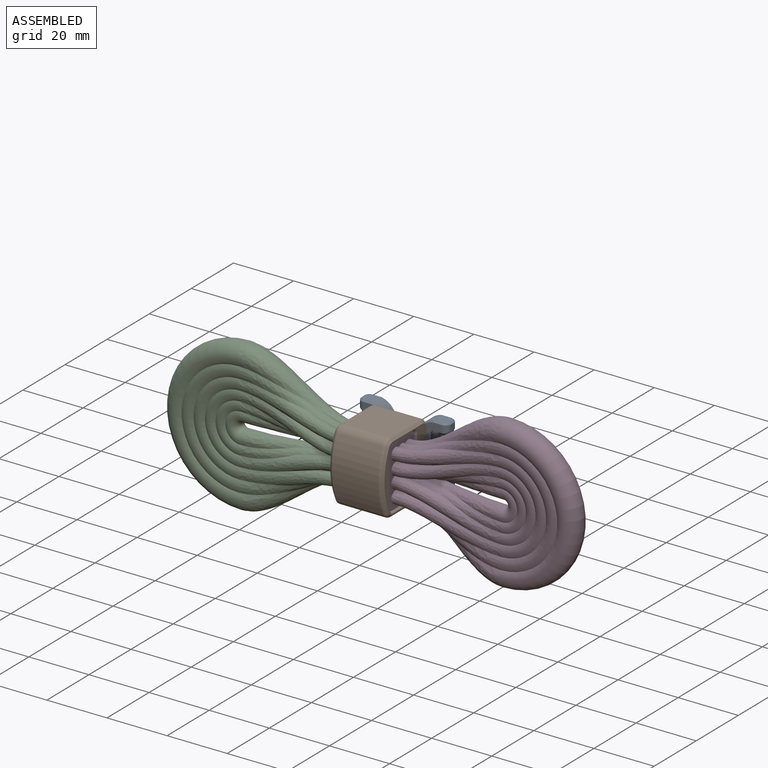
[diagram: assembled view]
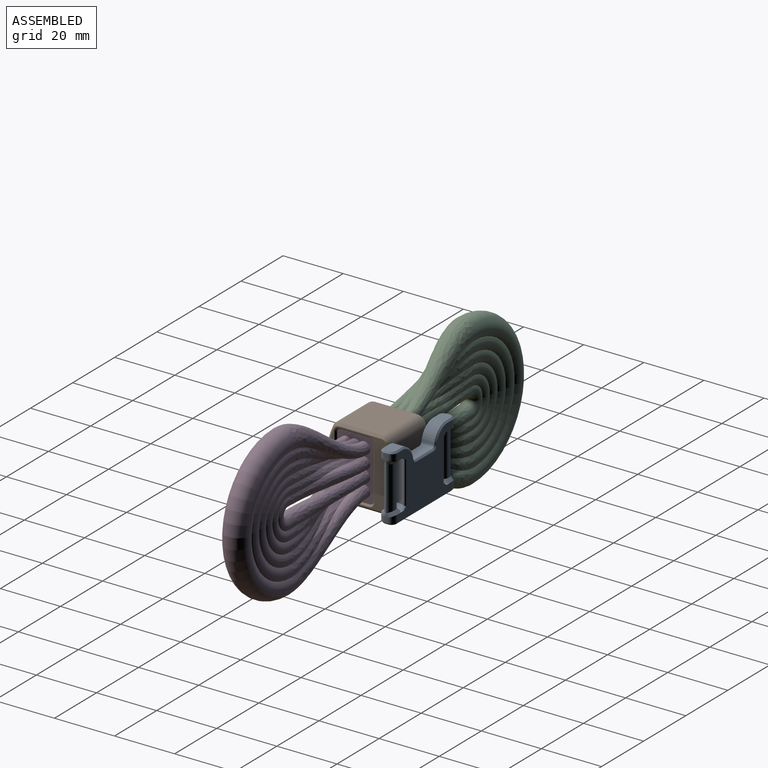
[diagram: assembled view, second angle]
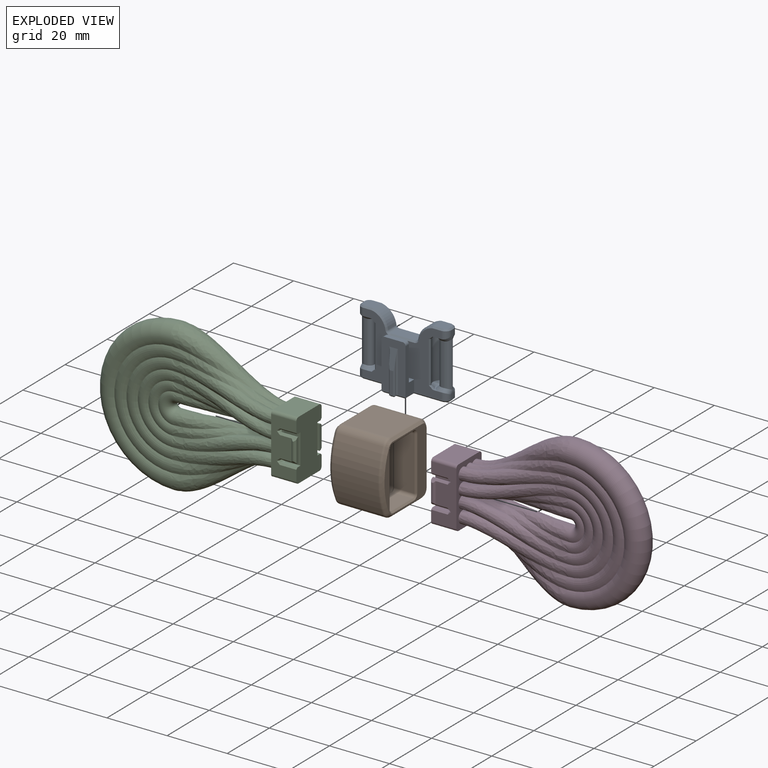
[diagram: exploded view]
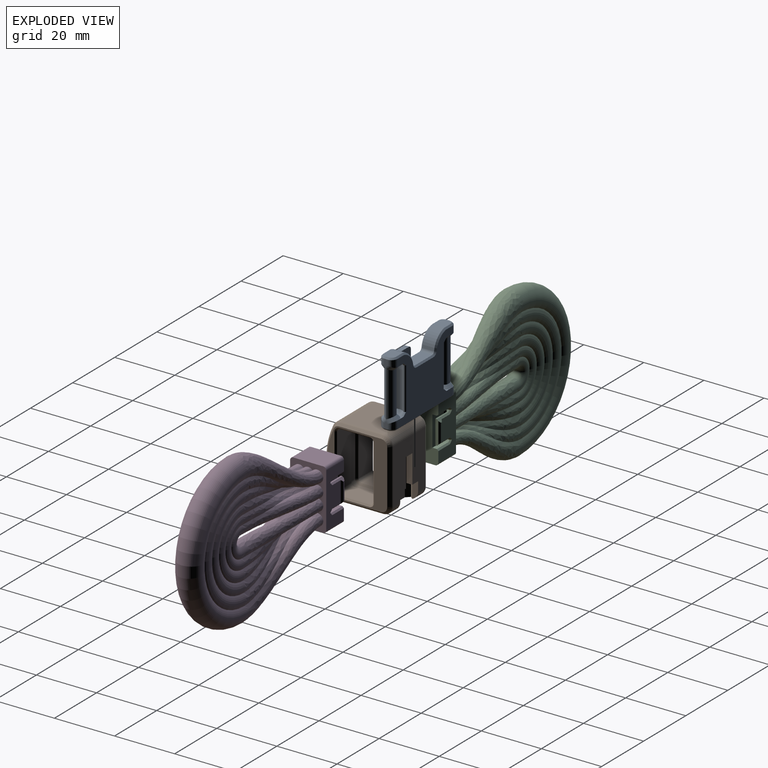
[diagram: exploded view, second angle]
ASSEMBLY  parts=4 mates=3
PART A: 134 faces, bbox 30.1x11.2x22.1 mm
  f0: plane 4.45x4mm, normal (0,0,1), area 16.8mm2, adj f98,f101,f102,f105,f108,f109
  f1: plane 26x21mm, normal (0,-1,0), area 279.1mm2, adj f6,f8,f9,f10,f11,f12,f13,f25
  f2: plane 26x21mm, normal (0,1,0), area 336.1mm2, adj f25,f26,f31,f32,f33,f36,f39,f42
  f3: plane 16.5x8mm, normal (0,-1,0), area 89.6mm2, adj f6,f8,f15,f16,f17,f82,f121,f129
  f4: plane 2.17x1mm, normal (1,0,0), area 1.9mm2, adj f74,f77,f78,f80,f122
  f5: plane 2.17x1mm, normal (-1,0,0), area 1.9mm2, adj f61,f62,f63,f66,f114
  f6: plane 15.5x4.1mm, normal (-1,0,0), area 34.8mm2, adj f1,f3,f13,f14,f17,f119
  f7: plane 29x9.1mm, normal (0,0,-1), area 143.8mm2, adj f114,f115,f116,f117,f118,f119,f120,f121
  f8: plane 15.5x4.1mm, normal (1,0,0), area 34.8mm2, adj f1,f3,f9,f14,f15,f128
  f9: plane 2.75x2.5mm, normal (0,0,1), area 6.9mm2, adj f1,f8,f10,f14
  f10: plane 10x2.5mm, normal (1,0,0), area 25mm2, adj f1,f9,f11,f14
  f11: plane 2.5x2.5mm, normal (0,0,1), area 6.2mm2, adj f1,f10,f12,f14
  f12: plane 10x2.5mm, normal (-1,0,0), area 25mm2, adj f1,f11,f13,f14
  f13: plane 2.75x2.5mm, normal (0,0,1), area 6.9mm2, adj f1,f6,f12,f14
  f14: plane 12.5x8mm, normal (0,1,0), area 74.6mm2, adj f6,f8,f9,f10,f11,f12,f13,f15
  f15: cylinder r=1mm len=1.6mm, axis (0,1,0), area 2.5mm2, adj f3,f8,f14,f16
  f16: plane 6x1.6mm, normal (0,0,1), area 9.6mm2, adj f3,f14,f15,f17
  f17: cylinder r=1mm len=1.6mm, axis (0,1,0), area 2.5mm2, adj f3,f6,f14,f16
  f18: plane 2.17x1mm, normal (1,0,0), area 1.9mm2, adj f71,f72,f73,f76,f101
  f19: plane 4.45x4mm, normal (0,0,1), area 16.8mm2, adj f88,f90,f91,f94,f96,f97
  f20: plane 2.17x1mm, normal (-1,0,0), area 1.9mm2, adj f64,f67,f68,f70,f91
  f21: cylinder r=2.5mm len=14mm, axis (0,0,1), area 51.1mm2, adj f45,f46,f50,f53
  f22: plane 14x0.5mm, normal (0,1,0), area 7mm2, adj f23,f39,f42,f69
  f23: cylinder r=1.5mm len=14mm, axis (0,0,1), area 66mm2, adj f22,f24,f40,f43
  f24: plane 14x0.5mm, normal (0,-1,0), area 7mm2, adj f23,f41,f44,f65
  f25: plane 5x3mm, normal (0,0,1), area 2.9mm2, adj f1,f2,f40,f52,f53,f54
  f26: plane 5x3mm, normal (0,0,-1), area 2.9mm2, adj f1,f2,f43,f49,f50,f51
  f27: plane 14x0.5mm, normal (0,-1,0), area 7mm2, adj f28,f35,f38,f75
  f28: cylinder r=1.5mm len=14mm, axis (0,0,1), area 66mm2, adj f27,f29,f34,f37
  f29: plane 14x0.5mm, normal (0,1,0), area 7mm2, adj f28,f33,f36,f79
  f30: cylinder r=2.5mm len=14mm, axis (0,0,1), area 51.1mm2, adj f47,f48,f56,f59
  f31: plane 5x3mm, normal (0,0,1), area 2.9mm2, adj f1,f2,f37,f55,f56,f57
  f32: plane 5x3mm, normal (0,0,-1), area 2.9mm2, adj f1,f2,f34,f58,f59,f60
  f33: plane 1x1mm, normal (0,0.71,-0.71), area 0.7mm2, adj f2,f29,f34,f76
  f34: cone r=2.5mm half-angle=45deg, axis (0,0,1), area 8.9mm2, adj f28,f32,f33,f35
  f35: plane 1x1mm, normal (0,-0.71,-0.71), area 0.7mm2, adj f1,f27,f34,f72
  f36: plane 1x1mm, normal (0,0.71,0.71), area 0.7mm2, adj f2,f29,f37,f80
  f37: cone r=1.5mm half-angle=45deg, axis (0,0,-1), area 8.9mm2, adj f28,f31,f36,f38
  f38: plane 1x1mm, normal (0,-0.71,0.71), area 0.7mm2, adj f1,f27,f37,f78
  f39: plane 1x1mm, normal (0,0.71,0.71), area 0.7mm2, adj f2,f22,f40,f66
  f40: cone r=2.5mm half-angle=45deg, axis (0,0,-1), area 8.9mm2, adj f23,f25,f39,f41
  f41: plane 1x1mm, normal (0,-0.71,0.71), area 0.7mm2, adj f1,f24,f40,f62
  f42: plane 1x1mm, normal (0,0.71,-0.71), area 0.7mm2, adj f2,f22,f43,f70
  f43: cone r=1.5mm half-angle=45deg, axis (0,0,1), area 8.9mm2, adj f23,f26,f42,f44
  f44: plane 1x1mm, normal (0,-0.71,-0.71), area 0.7mm2, adj f1,f24,f43,f68
  f45: cylinder r=0.5mm len=14mm, axis (0,0,1), area 16.1mm2, adj f1,f21,f49,f52
  f46: cylinder r=0.5mm len=14mm, axis (0,0,1), area 16.1mm2, adj f2,f21,f51,f54
  f47: cylinder r=0.5mm len=14mm, axis (0,0,1), area 16.1mm2, adj f2,f30,f57,f60
  f48: cylinder r=0.5mm len=14mm, axis (0,0,1), area 16.1mm2, adj f1,f30,f55,f58
  f49: cone r=1.5mm half-angle=45deg, axis (0,0,1), area 1.8mm2, adj f1,f26,f45,f50
  f50: cone r=1.5mm half-angle=45deg, axis (0,0,-1), area 4.1mm2, adj f21,f26,f49,f51
  f51: cone r=1.5mm half-angle=45deg, axis (0,0,1), area 1.8mm2, adj f2,f26,f46,f50
  f52: cone r=1.5mm half-angle=45deg, axis (0,0,-1), area 1.8mm2, adj f1,f25,f45,f53
  f53: cone r=2.5mm half-angle=45deg, axis (0,0,1), area 4.1mm2, adj f21,f25,f52,f54
  f54: cone r=1.5mm half-angle=45deg, axis (0,0,-1), area 1.8mm2, adj f2,f25,f46,f53
  f55: cone r=1.5mm half-angle=45deg, axis (0,0,-1), area 1.8mm2, adj f1,f31,f48,f56
  f56: cone r=1.5mm half-angle=45deg, axis (0,0,1), area 4.1mm2, adj f30,f31,f55,f57
  f57: cone r=1.5mm half-angle=45deg, axis (0,0,-1), area 1.8mm2, adj f2,f31,f47,f56
  f58: cone r=1.5mm half-angle=45deg, axis (0,0,1), area 1.8mm2, adj f1,f32,f48,f59
  f59: cone r=2.5mm half-angle=45deg, axis (0,0,-1), area 4.1mm2, adj f30,f32,f58,f60
  f60: cone r=1.5mm half-angle=45deg, axis (0,0,1), area 1.8mm2, adj f2,f32,f47,f59
  f61: cylinder r=2mm len=2.5mm, axis (0,0,-1), area 6.9mm2, adj f1,f5,f62,f115
  f62: cylinder r=2mm len=2.85mm, axis (0,0.71,0.71), area 4.5mm2, adj f5,f41,f61,f65,f66
  f63: cylinder r=2mm len=2.5mm, axis (0,0,1), area 6.9mm2, adj f2,f5,f66,f116
  f64: cylinder r=2mm len=2.5mm, axis (0,0,-1), area 6.9mm2, adj f1,f20,f68,f88
  f65: cylinder r=2mm len=15.24mm, axis (0,0,1), area 38.5mm2, adj f24,f62,f68,f69
  f66: cylinder r=2mm len=2.85mm, axis (0,0.71,-0.71), area 4.5mm2, adj f5,f39,f62,f63,f69
  f67: cylinder r=2mm len=2.5mm, axis (0,0,1), area 6.9mm2, adj f2,f20,f70,f94
  f68: cylinder r=2mm len=2.85mm, axis (0,0.71,-0.71), area 4.5mm2, adj f20,f44,f64,f65,f70
  f69: cylinder r=2mm len=15.24mm, axis (0,0,1), area 38.5mm2, adj f22,f65,f66,f70
  f70: cylinder r=2mm len=2.85mm, axis (0,0.71,0.71), area 4.5mm2, adj f20,f42,f67,f68,f69
  f71: cylinder r=2mm len=2.5mm, axis (0,0,1), area 6.9mm2, adj f1,f18,f72,f98
  f72: cylinder r=2mm len=2.85mm, axis (0,-0.71,0.71), area 4.5mm2, adj f18,f35,f71,f75,f76
  f73: cylinder r=2mm len=2.5mm, axis (0,0,-1), area 6.9mm2, adj f2,f18,f76,f105
  f74: cylinder r=2mm len=2.5mm, axis (0,0,1), area 6.9mm2, adj f1,f4,f78,f124
  f75: cylinder r=2mm len=15.24mm, axis (0,0,1), area 38.5mm2, adj f27,f72,f78,f79
  f76: cylinder r=2mm len=2.85mm, axis (0,-0.71,-0.71), area 4.5mm2, adj f18,f33,f72,f73,f79
  f77: cylinder r=2mm len=2.5mm, axis (0,0,-1), area 6.9mm2, adj f2,f4,f80,f120
  f78: cylinder r=2mm len=2.85mm, axis (0,-0.71,-0.71), area 4.5mm2, adj f4,f38,f74,f75,f80
  f79: cylinder r=2mm len=15.24mm, axis (0,0,1), area 38.5mm2, adj f29,f75,f76,f80
  f80: cylinder r=2mm len=2.85mm, axis (0,-0.71,0.71), area 4.5mm2, adj f4,f36,f77,f78,f79
  f81: plane 7.5x1mm, normal (0,-1,0), area 7.5mm2, adj f82,f125,f131,f133
  f82: plane 6.5x3mm, normal (0,-0.99,0.15), area 13.2mm2, adj f3,f81,f130,f131,f132,f133
  f83: cylinder r=6.1mm len=5.13mm, axis (0,-1,0), area 30.3mm2, adj f86,f89,f96,f104
  f84: plane 8.14x4mm, normal (0,0,1), area 32.6mm2, adj f86,f87,f95,f110
  f85: cylinder r=6.1mm len=5.13mm, axis (0,-1,0), area 30.3mm2, adj f87,f103,f109,f113
  f86: cylinder r=1mm len=4mm, axis (0,-1,0), area 5.7mm2, adj f83,f84,f92,f107
  f87: cylinder r=1mm len=4mm, axis (0,-1,0), area 5.7mm2, adj f84,f85,f99,f112
  f88: cone r=1.5mm half-angle=45deg, axis (0,0,-1), area 1.9mm2, adj f19,f64,f90,f91
  f89: cone r=5.6mm half-angle=45deg, axis (0,1,0), area 5.1mm2, adj f1,f83,f92,f93
  f90: plane 2.95x0.5mm, normal (0,-0.71,0.71), area 2.1mm2, adj f1,f19,f88,f93
  f91: plane 1x0.5mm, normal (-0.71,0,0.71), area 0.7mm2, adj f19,f20,f88,f94
  f92: cone r=1.5mm half-angle=45deg, axis (0,-1,0), area 1.3mm2, adj f1,f86,f89,f95
  f93: plane 0.5x0.5mm, normal (0.07,-0.71,0.71), area 0mm2, adj f89,f90,f96
  f94: cone r=1.5mm half-angle=45deg, axis (0,0,-1), area 1.9mm2, adj f19,f67,f91,f97
  f95: plane 8.14x0.5mm, normal (0,-0.71,0.71), area 5.8mm2, adj f1,f84,f92,f99
  f96: plane 4x0.09mm, normal (0.09,0,1), area 0.4mm2, adj f19,f83,f93,f100
  f97: plane 2.95x0.5mm, normal (0,0.71,0.71), area 2.1mm2, adj f2,f19,f94,f100
  f98: cone r=1.5mm half-angle=45deg, axis (0,0,-1), area 1.9mm2, adj f0,f71,f101,f102
  f99: cone r=1.5mm half-angle=45deg, axis (0,-1,0), area 1.3mm2, adj f1,f87,f95,f103
  f100: plane 0.5x0.5mm, normal (0.07,0.71,0.71), area 0mm2, adj f96,f97,f104
  f101: plane 1x0.5mm, normal (0.71,0,0.71), area 0.7mm2, adj f0,f18,f98,f105
  f102: plane 2.95x0.5mm, normal (0,-0.71,0.71), area 2.1mm2, adj f0,f1,f98,f106
  f103: cone r=5.6mm half-angle=45deg, axis (0,1,0), area 5.1mm2, adj f1,f85,f99,f106
  f104: cone r=6.1mm half-angle=45deg, axis (0,-1,0), area 5.1mm2, adj f2,f83,f100,f107
  f105: cone r=1.5mm half-angle=45deg, axis (0,0,-1), area 1.9mm2, adj f0,f73,f101,f108
  f106: plane 0.5x0.5mm, normal (-0.07,-0.71,0.71), area 0mm2, adj f102,f103,f109
  f107: cone r=1.5mm half-angle=45deg, axis (0,1,0), area 1.3mm2, adj f2,f86,f104,f110
  f108: plane 2.95x0.5mm, normal (0,0.71,0.71), area 2.1mm2, adj f0,f2,f105,f111
  f109: plane 4x0.09mm, normal (-0.09,0,1), area 0.4mm2, adj f0,f85,f106,f111
  f110: plane 8.14x0.5mm, normal (0,0.71,0.71), area 5.8mm2, adj f2,f84,f107,f112
  f111: plane 0.5x0.5mm, normal (-0.07,0.71,0.71), area 0mm2, adj f108,f109,f113
  f112: cone r=1.5mm half-angle=45deg, axis (0,1,0), area 1.3mm2, adj f2,f87,f110,f113
  f113: cone r=6.1mm half-angle=45deg, axis (0,-1,0), area 5.1mm2, adj f2,f85,f111,f112
  f114: plane 1x0.5mm, normal (-0.71,0,-0.71), area 0.7mm2, adj f5,f7,f115,f116
  f115: cone r=1.5mm half-angle=45deg, axis (0,0,1), area 1.9mm2, adj f7,f61,f114,f117
  f116: cone r=1.5mm half-angle=45deg, axis (0,0,1), area 1.9mm2, adj f7,f63,f114,f118
  f117: plane 9.5x0.5mm, normal (0,-0.71,-0.71), area 6.5mm2, adj f1,f7,f115,f119
  f118: plane 26x0.5mm, normal (0,0.71,-0.71), area 18.4mm2, adj f2,f7,f116,f120
  f119: plane 4.6x0.5mm, normal (-0.71,0,-0.71), area 2.9mm2, adj f6,f7,f117,f121
  f120: cone r=1.5mm half-angle=45deg, axis (0,0,1), area 1.9mm2, adj f7,f77,f118,f122
  f121: plane 3.57x0.72mm, normal (0,-0.71,-0.71), area 2.2mm2, adj f3,f7,f119,f123,f130
  f122: plane 1x0.5mm, normal (0.71,0,-0.71), area 0.7mm2, adj f4,f7,f120,f124
  f123: plane 1.42x0.72mm, normal (-0.71,0,-0.71), area 0.7mm2, adj f7,f121,f125,f130,f131
  f124: cone r=1.5mm half-angle=45deg, axis (0,0,1), area 1.9mm2, adj f7,f74,f122,f126
  f125: plane 1.78x0.57mm, normal (0,-0.71,-0.71), area 1mm2, adj f7,f81,f123,f127,f131,f133
  f126: plane 9.5x0.5mm, normal (0,-0.71,-0.71), area 6.5mm2, adj f1,f7,f124,f128
  f127: plane 1.42x0.72mm, normal (0.71,0,-0.71), area 0.7mm2, adj f7,f125,f129,f132,f133
  f128: plane 4.6x0.5mm, normal (0.71,0,-0.71), area 2.9mm2, adj f7,f8,f126,f129
  f129: plane 3.57x0.72mm, normal (0,-0.71,-0.71), area 2.2mm2, adj f3,f7,f127,f128,f132
  f130: cylinder r=0.5mm len=14mm, axis (0,0,1), area 10mm2, adj f3,f82,f121,f123,f131
  f131: cylinder r=0.5mm len=10.9mm, axis (0,0,-1), area 6.9mm2, adj f81,f82,f123,f125,f130
  f132: cylinder r=0.5mm len=14mm, axis (0,0,-1), area 10mm2, adj f3,f82,f127,f129,f133
  f133: cylinder r=0.5mm len=10.9mm, axis (0,0,1), area 6.9mm2, adj f81,f82,f125,f127,f132
PART B: 113 faces, bbox 18x24.3x24.5 mm
  f0: plane 10x6.9mm, normal (0,0,-1), area 69mm2, adj f1,f7,f85,f108
  f1: cylinder r=1.05mm len=6.9mm, axis (-1,0,0), area 11.4mm2, adj f0,f2,f83,f106
  f2: plane 18x6.9mm, normal (0,-1,0), area 124.2mm2, adj f1,f3,f81,f105
  f3: cylinder r=1.05mm len=6.9mm, axis (-1,0,0), area 11.4mm2, adj f2,f4,f82,f107
  f4: plane 10x6.9mm, normal (0,0,1), area 69mm2, adj f3,f5,f84,f109
  f5: cylinder r=1.05mm len=6.9mm, axis (-1,0,0), area 11.4mm2, adj f4,f6,f86,f111
  f6: plane 18x6.9mm, normal (0,1,0), area 124.2mm2, adj f5,f7,f88,f112
  f7: cylinder r=1.05mm len=6.9mm, axis (-1,0,0), area 11.4mm2, adj f0,f6,f87,f110
  f8: cylinder r=3mm len=15.17mm, axis (-1,0,0), area 51.6mm2, adj f20,f38,f63,f70
  f9: plane 15.17x14mm, normal (0,0,-1), area 198.6mm2, adj f17,f28,f29,f30,f31,f32,f39,f40
  f10: plane 10x6.9mm, normal (0,0,-1), area 69mm2, adj f11,f21,f77,f100
  f11: cylinder r=1.05mm len=6.9mm, axis (-1,0,0), area 11.4mm2, adj f10,f12,f75,f98
  f12: plane 18x6.9mm, normal (0,-1,0), area 124.2mm2, adj f11,f13,f73,f97
  f13: cylinder r=1.05mm len=6.9mm, axis (-1,0,0), area 11.4mm2, adj f12,f14,f74,f99
  f14: plane 10x6.9mm, normal (0,0,1), area 69mm2, adj f13,f15,f76,f101
  f15: cylinder r=1.05mm len=6.9mm, axis (-1,0,0), area 11.4mm2, adj f14,f16,f78,f103
  f16: plane 18x6.9mm, normal (0,1,0), area 124.2mm2, adj f15,f21,f80,f104
  f17: cylinder r=3mm len=15.17mm, axis (-1,0,0), area 51.6mm2, adj f9,f38,f59,f66
  f18: plane 18x15.17mm, normal (0,1,0), area 219.1mm2, adj f19,f24,f25,f26,f34,f35,f36,f37
  f19: cylinder r=3mm len=15.17mm, axis (-1,0,0), area 71.5mm2, adj f18,f20,f62,f71
  f20: plane 15.17x14mm, normal (0,0,1), area 212.4mm2, adj f8,f19,f64,f72
  f21: cylinder r=1.05mm len=6.9mm, axis (-1,0,0), area 11.4mm2, adj f10,f16,f79,f102
  f22: plane 22x20mm, normal (1,0,0), area 143.6mm2, adj f49,f50,f51,f52,f53,f54,f55,f56
  f23: plane 22x20mm, normal (-1,0,0), area 143.6mm2, adj f41,f42,f43,f44,f45,f46,f47,f48
  f24: plane 9.5x2mm, normal (1,0,0), area 19mm2, adj f18,f26,f27,f35
  f25: plane 9.5x2mm, normal (-1,0,0), area 19mm2, adj f18,f26,f27,f37
  f26: plane 3x2mm, normal (0,0,-1), area 6mm2, adj f18,f24,f25,f27
  f27: plane 13.5x8.5mm, normal (0,-1,0), area 86.2mm2, adj f24,f25,f26,f28,f32,f33,f35,f37
  f28: plane 19.51x1.21mm, normal (0.71,-0.71,0), area 33mm2, adj f9,f27,f29,f33,f34,f39
  f29: plane 19.5x1.2mm, normal (0.71,0.71,0), area 33.1mm2, adj f9,f28,f30,f33
  f30: plane 19.5x8.5mm, normal (0,1,0), area 165.8mm2, adj f9,f29,f31,f33
  f31: plane 19.5x1.2mm, normal (-0.71,0.71,0), area 33.1mm2, adj f9,f30,f32,f33
  f32: plane 19.51x1.21mm, normal (-0.71,-0.71,0), area 33mm2, adj f9,f27,f31,f33,f36,f40
  f33: plane 10.9x2.4mm, normal (0,0,-1), area 23.3mm2, adj f27,f28,f29,f30,f31,f32
  f34: plane 5.83x2mm, normal (1,0,0), area 10.1mm2, adj f18,f28,f35,f39
  f35: plane 2.75x2mm, normal (0,0,-1), area 5.5mm2, adj f18,f24,f27,f34
  f36: plane 5.83x2mm, normal (-1,0,0), area 10.1mm2, adj f18,f32,f37,f40
  f37: plane 2.75x2mm, normal (0,0,-1), area 5.5mm2, adj f18,f25,f27,f36
  f38: cylinder r=24.25mm len=20.54mm, axis (-1,0,0), area 321.8mm2, adj f8,f17,f61,f68
  f39: cylinder r=3mm len=3.34mm, axis (1,0,0), area 15.2mm2, adj f9,f18,f28,f34,f58
  f40: cylinder r=3mm len=3.34mm, axis (1,0,0), area 15.2mm2, adj f9,f18,f32,f36,f67
  f41: plane 14x0.71mm, normal (-0.71,0,-0.71), area 14mm2, adj f23,f42,f43,f57
  f42: cone r=2mm half-angle=45deg, axis (1,0,0), area 3.7mm2, adj f23,f41,f44,f58
  f43: cone r=3mm half-angle=45deg, axis (1,0,0), area 2.7mm2, adj f23,f41,f45,f59
  f44: plane 18x0.71mm, normal (-0.71,0.71,0), area 18mm2, adj f23,f42,f46,f60
  f45: cone r=24.25mm half-angle=45deg, axis (1,0,0), area 20.6mm2, adj f23,f43,f47,f61
  f46: cone r=3mm half-angle=45deg, axis (1,0,0), area 3.7mm2, adj f23,f44,f48,f62
  f47: cone r=3mm half-angle=45deg, axis (1,0,0), area 2.7mm2, adj f23,f45,f48,f63
  f48: plane 14x0.71mm, normal (-0.71,0,0.71), area 14mm2, adj f23,f46,f47,f64
  f49: plane 14x0.71mm, normal (0.71,0,-0.71), area 14mm2, adj f22,f50,f51,f65
  f50: cone r=2mm half-angle=45deg, axis (-1,0,0), area 3.7mm2, adj f22,f49,f52,f67
  f51: cone r=2mm half-angle=45deg, axis (-1,0,0), area 2.7mm2, adj f22,f49,f53,f66
  f52: plane 18x0.71mm, normal (0.71,0.71,0), area 18mm2, adj f22,f50,f54,f69
  f53: cone r=23.25mm half-angle=45deg, axis (-1,0,0), area 20.6mm2, adj f22,f51,f55,f68
  f54: cone r=2mm half-angle=45deg, axis (-1,0,0), area 3.7mm2, adj f22,f52,f56,f71
  f55: cone r=2mm half-angle=45deg, axis (-1,0,0), area 2.7mm2, adj f22,f53,f56,f70
  f56: plane 14x0.71mm, normal (0.71,0,0.71), area 14mm2, adj f22,f54,f55,f72
  f57: cylinder r=1mm len=14mm, axis (0,1,0), area 11mm2, adj f9,f41,f58,f59
  f58: torus R=2mm, axis (-1,0,0), area 3.6mm2, adj f39,f42,f57,f60
  f59: torus R=2mm, axis (-1,0,0), area 2.6mm2, adj f17,f43,f57,f61
  f60: cylinder r=1mm len=18mm, axis (0,0,1), area 14.1mm2, adj f18,f44,f58,f62
  f61: torus R=23.25mm, axis (-1,0,0), area 16.6mm2, adj f38,f45,f59,f63
  f62: torus R=2mm, axis (-1,0,0), area 3.6mm2, adj f19,f46,f60,f64
  f63: torus R=2mm, axis (-1,0,0), area 2.6mm2, adj f8,f47,f61,f64
  f64: cylinder r=1mm len=14mm, axis (0,-1,0), area 11mm2, adj f20,f48,f62,f63
  f65: cylinder r=1mm len=14mm, axis (0,1,0), area 11mm2, adj f9,f49,f66,f67
  f66: torus R=2mm, axis (1,0,0), area 2.6mm2, adj f17,f51,f65,f68
  f67: torus R=2mm, axis (1,0,0), area 3.6mm2, adj f40,f50,f65,f69
  f68: torus R=23.25mm, axis (1,0,0), area 16.6mm2, adj f38,f53,f66,f70
  f69: cylinder r=1mm len=18mm, axis (0,0,1), area 14.1mm2, adj f18,f52,f67,f71
  f70: torus R=2mm, axis (1,0,0), area 2.6mm2, adj f8,f55,f68,f72
  f71: torus R=2mm, axis (1,0,0), area 3.6mm2, adj f19,f54,f69,f72
  f72: cylinder r=1mm len=14mm, axis (0,-1,0), area 11mm2, adj f20,f56,f70,f71
  f73: plane 18x0.5mm, normal (0.71,-0.71,0), area 12.7mm2, adj f12,f22,f74,f75
  f74: cone r=1.05mm half-angle=45deg, axis (1,0,0), area 1.4mm2, adj f13,f22,f73,f76
  f75: cone r=1.05mm half-angle=45deg, axis (1,0,0), area 1.4mm2, adj f11,f22,f73,f77
  f76: plane 10x0.5mm, normal (0.71,0,0.71), area 7.1mm2, adj f14,f22,f74,f78
  f77: plane 10x0.5mm, normal (0.71,0,-0.71), area 7.1mm2, adj f10,f22,f75,f79
  f78: cone r=1.05mm half-angle=45deg, axis (1,0,0), area 1.4mm2, adj f15,f22,f76,f80
  f79: cone r=1.05mm half-angle=45deg, axis (1,0,0), area 1.4mm2, adj f21,f22,f77,f80
  f80: plane 18x0.5mm, normal (0.71,0.71,0), area 12.7mm2, adj f16,f22,f78,f79
  f81: plane 18x0.5mm, normal (-0.71,-0.71,0), area 12.7mm2, adj f2,f23,f82,f83
  f82: cone r=1.55mm half-angle=45deg, axis (-1,0,0), area 1.4mm2, adj f3,f23,f81,f84
  f83: cone r=1.55mm half-angle=45deg, axis (-1,0,0), area 1.4mm2, adj f1,f23,f81,f85
  f84: plane 10x0.5mm, normal (-0.71,0,0.71), area 7.1mm2, adj f4,f23,f82,f86
  f85: plane 10x0.5mm, normal (-0.71,0,-0.71), area 7.1mm2, adj f0,f23,f83,f87
  f86: cone r=1.55mm half-angle=45deg, axis (-1,0,0), area 1.4mm2, adj f5,f23,f84,f88
  f87: cone r=1.55mm half-angle=45deg, axis (-1,0,0), area 1.4mm2, adj f7,f23,f85,f88
  f88: plane 18x0.5mm, normal (-0.71,0.71,0), area 12.7mm2, adj f6,f23,f86,f87
  f89: cylinder r=1.65mm len=2mm, axis (-1,0,0), area 5.2mm2, adj f90,f96,f102,f110
  f90: plane 18x2mm, normal (0,1,0), area 36mm2, adj f89,f91,f104,f112
  f91: cylinder r=1.65mm len=2mm, axis (-1,0,0), area 5.2mm2, adj f90,f92,f103,f111
  f92: plane 10x2mm, normal (0,0,1), area 20mm2, adj f91,f93,f101,f109
  f93: cylinder r=1.65mm len=2mm, axis (-1,0,0), area 5.2mm2, adj f92,f94,f99,f107
  f94: plane 18x2mm, normal (0,-1,0), area 36mm2, adj f93,f95,f97,f105
  f95: cylinder r=1.65mm len=2mm, axis (-1,0,0), area 5.2mm2, adj f94,f96,f98,f106
  f96: plane 10x2mm, normal (0,0,-1), area 20mm2, adj f89,f95,f100,f108
  f97: plane 18x0.6mm, normal (-0.71,-0.71,0), area 15.3mm2, adj f12,f94,f98,f99
  f98: cone r=1.65mm half-angle=45deg, axis (-1,0,0), area 1.8mm2, adj f11,f95,f97,f100
  f99: cone r=1.65mm half-angle=45deg, axis (-1,0,0), area 1.8mm2, adj f13,f93,f97,f101
  f100: plane 10x0.6mm, normal (-0.71,0,-0.71), area 8.5mm2, adj f10,f96,f98,f102
  f101: plane 10x0.6mm, normal (-0.71,0,0.71), area 8.5mm2, adj f14,f92,f99,f103
  f102: cone r=1.65mm half-angle=45deg, axis (-1,0,0), area 1.8mm2, adj f21,f89,f100,f104
  f103: cone r=1.65mm half-angle=45deg, axis (-1,0,0), area 1.8mm2, adj f15,f91,f101,f104
  f104: plane 18x0.6mm, normal (-0.71,0.71,0), area 15.3mm2, adj f16,f90,f102,f103
  f105: plane 18x0.6mm, normal (0.71,-0.71,0), area 15.3mm2, adj f2,f94,f106,f107
  f106: cone r=1.05mm half-angle=45deg, axis (1,0,0), area 1.8mm2, adj f1,f95,f105,f108
  f107: cone r=1.05mm half-angle=45deg, axis (1,0,0), area 1.8mm2, adj f3,f93,f105,f109
  f108: plane 10x0.6mm, normal (0.71,0,-0.71), area 8.5mm2, adj f0,f96,f106,f110
  f109: plane 10x0.6mm, normal (0.71,0,0.71), area 8.5mm2, adj f4,f92,f107,f111
  f110: cone r=1.05mm half-angle=45deg, axis (1,0,0), area 1.8mm2, adj f7,f89,f108,f112
  f111: cone r=1.05mm half-angle=45deg, axis (1,0,0), area 1.8mm2, adj f5,f91,f109,f112
  f112: plane 18x0.6mm, normal (0.71,0.71,0), area 15.3mm2, adj f6,f90,f110,f111
PART C: 86 faces, bbox 54.7x13x70.7 mm
  f0: plane 18x8.4mm, normal (0,-1,0), area 116.7mm2, adj f3,f7,f14,f33,f66,f67,f68,f70
  f1: plane 18x8.4mm, normal (0,1,0), area 116.7mm2, adj f3,f7,f12,f31,f52,f53,f54,f56
  f2: plane 8x1mm, normal (0,0,-1), area 7.8mm2, adj f46,f47,f48,f66,f71,f85
  f3: plane 20x12mm, normal (0,0,-1), area 198.6mm2, adj f0,f1,f12,f13,f14,f31,f32,f33
  f4: torus R=6.75mm, axis (0,1,0), area 67.8mm2, adj f17,f22,f27,f35
  f5: torus R=13.5mm, axis (0,1,0), area 159.5mm2, adj f6,f19,f27,f37
  f6: torus R=17.25mm, axis (0,1,0), area 218.5mm2, adj f5,f20,f24,f38
  f7: plane 20x12mm, normal (0,0,1), area 100.4mm2, adj f0,f1,f8,f12,f13,f14,f16,f17
  f8: bspline ~35x16.1mm, area 112.1mm2, adj f7,f19,f21,f25
  f9: plane 3x1.36mm, normal (0,0,1), area 1.2mm2, adj f10,f18,f30,f36
  f10: bspline ~35x8.13mm, area 102.7mm2, adj f9,f11,f16,f18,f23
  f11: plane 3x1.36mm, normal (0,0,1), area 1.2mm2, adj f10,f16,f30,f34
  f12: cylinder r=1mm len=8.4mm, axis (0,0,1), area 13.2mm2, adj f1,f3,f7,f13
  f13: plane 10x8.4mm, normal (-1,0,0), area 84mm2, adj f3,f7,f12,f14
  f14: cylinder r=1mm len=8.4mm, axis (0,0,1), area 13.2mm2, adj f0,f3,f7,f13
  f15: plane 8x1mm, normal (0,0,-1), area 7.7mm2, adj f40,f44,f45,f54,f65,f80
  f16: bspline ~35x7.74mm, area 334.8mm2, adj f7,f10,f11,f17,f22
  f17: bspline ~35x9.35mm, area 100.1mm2, adj f4,f7,f16,f18
  f18: bspline ~35x13.25mm, area 277.3mm2, adj f7,f9,f10,f17,f19,f27,f28
  f19: bspline ~35x12.5mm, area 273.8mm2, adj f5,f7,f8,f18,f20,f26
  f20: bspline ~35x14.51mm, area 113.2mm2, adj f6,f7,f19,f21
  f21: bspline ~35x20.75mm, area 477.4mm2, adj f7,f8,f20,f24
  f22: torus R=3.75mm, axis (0,1,0), area 90.4mm2, adj f4,f16,f23,f34
  f23: torus R=6.75mm, axis (0,1,0), area 67.8mm2, adj f10,f22,f28,f30
  f24: torus R=21.25mm, axis (0,1,0), area 1240mm2, adj f6,f21,f25,f39
  f25: torus R=17.25mm, axis (0,1,0), area 218.5mm2, adj f8,f24,f26,f29
  f26: torus R=13.5mm, axis (0,1,0), area 159.5mm2, adj f19,f25,f28,f37
  f27: torus R=10mm, axis (0,1,0), area 109.5mm2, adj f4,f5,f18,f36
  f28: torus R=10mm, axis (0,1,0), area 109.5mm2, adj f18,f23,f26,f36
  f29: bspline ~35x16.1mm, area 112.1mm2, adj f7,f25,f37,f39
  f30: bspline ~35x8.13mm, area 102.7mm2, adj f9,f11,f23,f34,f36
  f31: cylinder r=1mm len=8.4mm, axis (0,0,1), area 13.2mm2, adj f1,f3,f7,f32
  f32: plane 10x8.4mm, normal (1,0,0), area 84mm2, adj f3,f7,f31,f33
  f33: cylinder r=1mm len=8.4mm, axis (0,0,1), area 13.2mm2, adj f0,f3,f7,f32
  f34: bspline ~35x7.74mm, area 334.8mm2, adj f7,f11,f22,f30,f35
  f35: bspline ~35x9.35mm, area 100.1mm2, adj f4,f7,f34,f36
  f36: bspline ~35x13.25mm, area 277.3mm2, adj f7,f9,f27,f28,f30,f35,f37
  f37: bspline ~35x12.5mm, area 273.8mm2, adj f5,f7,f26,f29,f36,f38
  f38: bspline ~35x14.51mm, area 113.2mm2, adj f6,f7,f37,f39
  f39: bspline ~35x20.75mm, area 477.4mm2, adj f7,f24,f29,f38
  f40: plane 5.5x0.5mm, normal (1,0,0), area 2.7mm2, adj f15,f45,f54,f59
  f41: plane 5.5x1.5mm, normal (-1,0,0), area 8.2mm2, adj f3,f42,f52,f55
  f42: plane 10x5.5mm, normal (0,1,0), area 55mm2, adj f3,f41,f43,f58
  f43: plane 5.5x1.5mm, normal (1,0,0), area 8.2mm2, adj f3,f42,f57,f61
  f44: plane 5.5x0.5mm, normal (-1,0,0), area 2.7mm2, adj f15,f45,f63,f65
  f45: plane 8x5.5mm, normal (0,-1,0), area 44mm2, adj f15,f40,f44,f62
  f46: plane 5.5x0.5mm, normal (1,0,0), area 2.7mm2, adj f2,f47,f66,f69
  f47: plane 8x5.5mm, normal (0,1,0), area 44mm2, adj f2,f46,f48,f72
  f48: plane 5.5x0.5mm, normal (-1,0,0), area 2.7mm2, adj f2,f47,f71,f75
  f49: plane 5.5x1.5mm, normal (1,0,0), area 8.2mm2, adj f3,f50,f77,f79
  f50: plane 10x5.5mm, normal (0,-1,0), area 55mm2, adj f3,f49,f51,f76
  f51: plane 5.5x1.5mm, normal (-1,0,0), area 8.2mm2, adj f3,f50,f68,f73
  f52: plane 5.5x0.5mm, normal (-0.71,0.71,0), area 3.9mm2, adj f1,f3,f41,f53
  f53: plane 1x1mm, normal (-0.58,0.58,-0.58), area 0.6mm2, adj f1,f52,f55,f56
  f54: plane 5.5x1mm, normal (0.71,0.71,0), area 4.6mm2, adj f1,f15,f40,f56,f80,f81,f82
  f55: plane 1.5x0.5mm, normal (-0.71,0,-0.71), area 0.9mm2, adj f41,f53,f58,f59
  f56: plane 1x1mm, normal (0.58,0.58,-0.58), area 0.6mm2, adj f1,f53,f54,f59
  f57: plane 5.5x0.5mm, normal (0.71,0.71,0), area 3.9mm2, adj f1,f3,f43,f60
  f58: plane 10x0.5mm, normal (0,0.71,-0.71), area 6.7mm2, adj f42,f55,f61,f62
  f59: plane 1x0.5mm, normal (0.71,0,-0.71), area 0.5mm2, adj f40,f55,f56,f62
  f60: plane 1x1mm, normal (0.58,0.58,-0.58), area 0.6mm2, adj f1,f57,f61,f64
  f61: plane 1.5x0.5mm, normal (0.71,0,-0.71), area 0.9mm2, adj f43,f58,f60,f63
  f62: plane 9x0.5mm, normal (0,-0.71,-0.71), area 6mm2, adj f45,f58,f59,f63
  f63: plane 1x0.5mm, normal (-0.71,0,-0.71), area 0.5mm2, adj f44,f61,f62,f64
  f64: plane 1x1mm, normal (-0.58,0.58,-0.58), area 0.6mm2, adj f1,f60,f63,f65
  f65: plane 5.5x1mm, normal (-0.71,0.71,0), area 4.6mm2, adj f1,f15,f44,f64,f80,f81,f82
  f66: plane 5.5x1mm, normal (0.71,-0.71,0), area 4.6mm2, adj f0,f2,f46,f67,f83,f84,f85
  f67: plane 1x1mm, normal (0.58,-0.58,-0.58), area 0.6mm2, adj f0,f66,f69,f70
  f68: plane 5.5x0.5mm, normal (-0.71,-0.71,0), area 3.9mm2, adj f0,f3,f51,f70
  f69: plane 1x0.5mm, normal (0.71,0,-0.71), area 0.5mm2, adj f46,f67,f72,f73
  f70: plane 1x1mm, normal (-0.58,-0.58,-0.58), area 0.6mm2, adj f0,f67,f68,f73
  f71: plane 5.5x1mm, normal (-0.71,-0.71,0), area 4.6mm2, adj f0,f2,f48,f74,f83,f84,f85
  f72: plane 9x0.5mm, normal (0,0.71,-0.71), area 6mm2, adj f47,f69,f75,f76
  f73: plane 1.5x0.5mm, normal (-0.71,0,-0.71), area 0.9mm2, adj f51,f69,f70,f76
  f74: plane 1x1mm, normal (-0.58,-0.58,-0.58), area 0.6mm2, adj f0,f71,f75,f78
  f75: plane 1x0.5mm, normal (-0.71,0,-0.71), area 0.5mm2, adj f48,f72,f74,f77
  f76: plane 10x0.5mm, normal (0,-0.71,-0.71), area 6.7mm2, adj f50,f72,f73,f77
  f77: plane 1.5x0.5mm, normal (0.71,0,-0.71), area 0.9mm2, adj f49,f75,f76,f78
  f78: plane 1x1mm, normal (0.58,-0.58,-0.58), area 0.6mm2, adj f0,f74,f77,f79
  f79: plane 5.5x0.5mm, normal (0.71,-0.71,0), area 3.9mm2, adj f0,f3,f49,f78
  f80: plane 7x0.5mm, normal (0,0.71,-0.71), area 4.6mm2, adj f15,f54,f65,f81
  f81: plane 6x0.5mm, normal (0,1,0), area 3mm2, adj f54,f65,f80,f82
  f82: plane 7x0.5mm, normal (0,0.71,0.71), area 4.6mm2, adj f1,f54,f65,f81
  f83: plane 7x0.5mm, normal (0,-0.71,0.71), area 4.6mm2, adj f0,f66,f71,f84
  f84: plane 6x0.5mm, normal (0,-1,0), area 3mm2, adj f66,f71,f83,f85
  f85: plane 7x0.5mm, normal (0,-0.71,-0.71), area 4.6mm2, adj f2,f66,f71,f84
PART D: same geometry as C
PLACE A t=(0,0.25,1)mm
PLACE B at identity fixed
PLACE C rot(axis=(0,-1,0),90deg) t=(-8.5,-12,12)mm
PLACE D rot(axis=(0,1,0),90deg) t=(8.5,-12,12)mm
MATE fastened A.f11 <-> B.f26  axis (0,0,1) through (0,-1,15.5)mm
MATE fastened C.f33 <-> B.f7  axis (-1,0,0) through (-8.5,-17,21)mm
MATE fastened D.f12 <-> B.f1  axis (1,0,0) through (8.5,-7,21)mm
